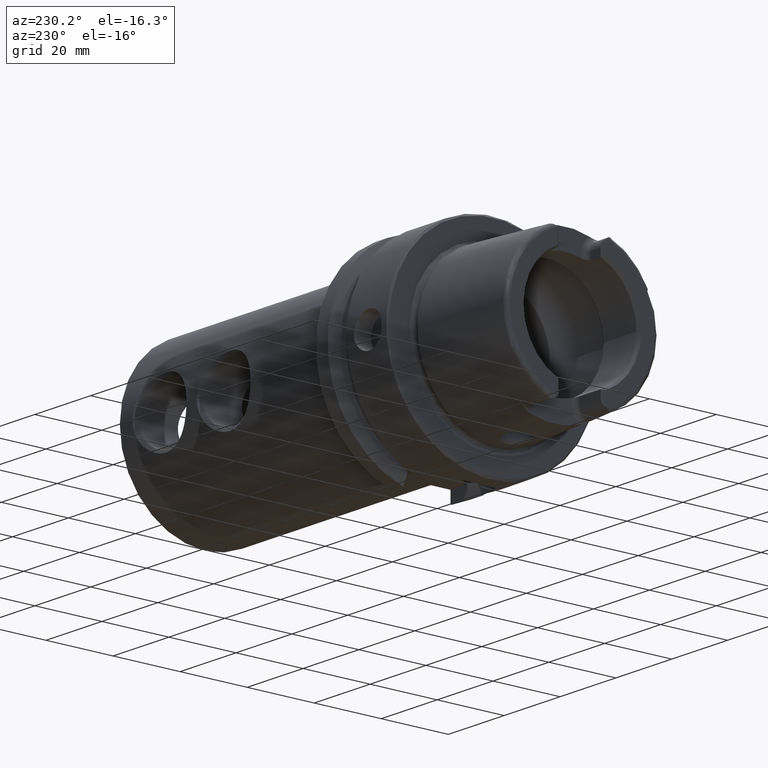
[diagram: clean part render]
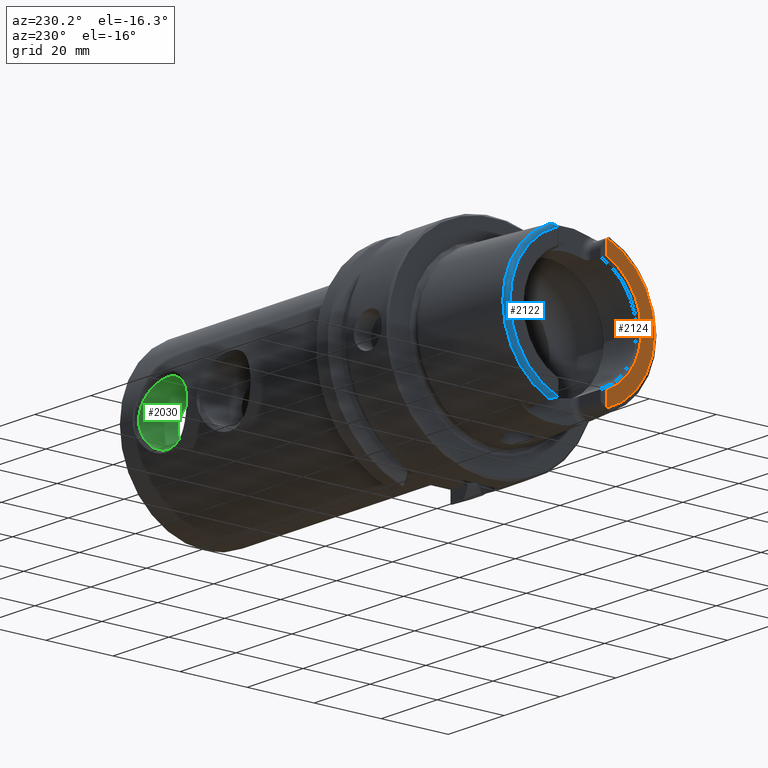
[diagram: same view with three faces highlighted in distinct colors, each labeled with its STEP entity id]
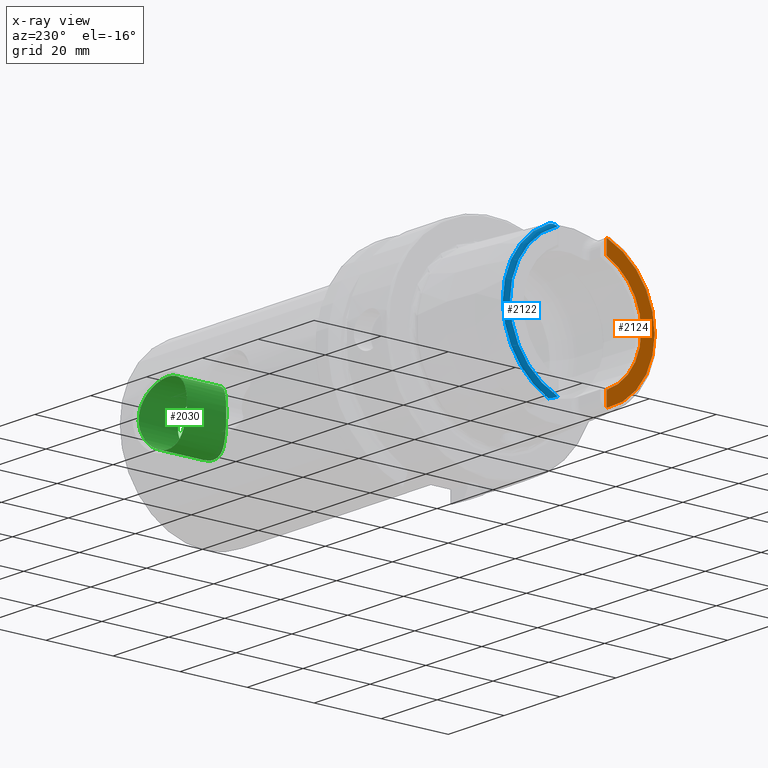
[diagram: x-ray of the same camera — body ghosted, the three highlighted faces saturated]
A machine part, auxiliary view with three faces highlighted in distinct colors.
The next image is the same camera in x-ray (body ghosted, the three faces saturated) — at least one of them is partly hidden behind the body in this view.
Their STEP definitions:

[orange] entity #2124 — the highlighted planar face has unit normal (-1, 0, 0).
#66=PLANE('',#2370);
#329=FACE_OUTER_BOUND('',#463,.T.);
#463=EDGE_LOOP('',(#1921,#1922,#1923,#1924,#1925,#1926));
#499=LINE('',#3552,#611);
#512=LINE('',#3665,#624);
#611=VECTOR('',#2494,10.);
#624=VECTOR('',#2541,10.);
#726=CIRCLE('',#2203,2.88);
#730=CIRCLE('',#2218,2.88);
#806=CIRCLE('',#2371,21.5760400159857);
#807=CIRCLE('',#2372,17.5773502691896);
#856=VERTEX_POINT('',#3549);
#857=VERTEX_POINT('',#3551);
#864=VERTEX_POINT('',#3584);
#877=VERTEX_POINT('',#3658);
#880=VERTEX_POINT('',#3663);
#883=VERTEX_POINT('',#3673);
#1078=EDGE_CURVE('',#856,#857,#499,.T.);
#1087=EDGE_CURVE('',#856,#864,#726,.T.);
#1106=EDGE_CURVE('',#880,#877,#512,.T.);
#1110=EDGE_CURVE('',#883,#877,#730,.T.);
#1330=EDGE_CURVE('',#883,#864,#806,.T.);
#1331=EDGE_CURVE('',#857,#880,#807,.T.);
#1921=ORIENTED_EDGE('',*,*,#1078,.F.);
#1922=ORIENTED_EDGE('',*,*,#1087,.T.);
#1923=ORIENTED_EDGE('',*,*,#1330,.F.);
#1924=ORIENTED_EDGE('',*,*,#1110,.T.);
#1925=ORIENTED_EDGE('',*,*,#1106,.F.);
#1926=ORIENTED_EDGE('',*,*,#1331,.F.);
#2124=ADVANCED_FACE('',(#329),#66,.T.);
#2203=AXIS2_PLACEMENT_3D('',#3597,#2506,#2507);
#2218=AXIS2_PLACEMENT_3D('',#3674,#2549,#2550);
#2370=AXIS2_PLACEMENT_3D('',#4878,#2927,#2928);
#2371=AXIS2_PLACEMENT_3D('',#4879,#2929,#2930);
#2372=AXIS2_PLACEMENT_3D('',#4880,#2931,#2932);
#2494=DIRECTION('',(0.,0.,1.));
#2506=DIRECTION('center_axis',(-1.,0.,0.));
#2507=DIRECTION('ref_axis',(0.,-1.,0.));
#2541=DIRECTION('',(0.,1.58830189502884E-16,1.));
#2549=DIRECTION('center_axis',(-1.,0.,0.));
#2550=DIRECTION('ref_axis',(0.,0.453346760926795,-0.891334232685576));
#2927=DIRECTION('center_axis',(-1.,0.,0.));
#2928=DIRECTION('ref_axis',(0.,0.,1.));
#2929=DIRECTION('center_axis',(1.,0.,0.));
#2930=DIRECTION('ref_axis',(0.,0.,-1.));
#2931=DIRECTION('center_axis',(-1.,0.,0.));
#2932=DIRECTION('ref_axis',(0.,-1.,0.));
#3549=CARTESIAN_POINT('',(-32.,-7.27,-20.1717424229271));
#3551=CARTESIAN_POINT('',(-32.,-7.27,-16.003447831195));
#3552=CARTESIAN_POINT('',(-32.,-7.27,-8.995));
#3584=CARTESIAN_POINT('',(-32.,-7.39118810947246,-20.2705658801576));
#3597=CARTESIAN_POINT('Origin',(-32.,-9.15,-17.99));
#3658=CARTESIAN_POINT('',(-32.,-7.26999999999999,20.1717424229271));
#3663=CARTESIAN_POINT('',(-32.,-7.26999999999999,16.003447831195));
#3665=CARTESIAN_POINT('',(-32.,-7.27,5.5));
#3673=CARTESIAN_POINT('',(-32.,-7.39118810947246,20.2705658801576));
#3674=CARTESIAN_POINT('Origin',(-32.,-9.15,17.99));
#4878=CARTESIAN_POINT('Origin',(-32.,21.5760400159857,0.));
#4879=CARTESIAN_POINT('Origin',(-32.,0.,0.));
#4880=CARTESIAN_POINT('Origin',(-32.,0.,0.));

[blue] entity #2122 — the highlighted toroidal blend (fillet) surface has major radius 21.576 mm and minor (blend) radius 1.2 mm.
#87=TOROIDAL_SURFACE('',#2368,21.5760400159857,1.2);
#120=B_SPLINE_CURVE_WITH_KNOTS('',3,(#3621,#3622,#3623,#3624,#3625,#3626,
#3627,#3628,#3629,#3630,#3631,#3632),.UNSPECIFIED.,.F.,.F.,(4,2,2,2,2,4),
(-0.439971245205478,-0.413787817992068,-0.386870723320619,-0.314205730694733,
-0.242063220501312,-0.191373987051965),.UNSPECIFIED.);
#125=B_SPLINE_CURVE_WITH_KNOTS('',3,(#3722,#3723,#3724,#3725,#3726,#3727,
#3728,#3729,#3730,#3731,#3732,#3733),.UNSPECIFIED.,.F.,.F.,(4,2,2,2,2,4),
(-0.196594494202377,-0.162015792380097,-0.0987584756003746,-0.0492121500493367,
-0.0201918504309682,-3.59409225206588E-5),.UNSPECIFIED.);
#327=FACE_OUTER_BOUND('',#461,.T.);
#461=EDGE_LOOP('',(#1914,#1915,#1916,#1917));
#737=CIRCLE('',#2231,22.7745368271334);
#805=CIRCLE('',#2367,21.5760400159857);
#872=VERTEX_POINT('',#3618);
#873=VERTEX_POINT('',#3620);
#892=VERTEX_POINT('',#3712);
#893=VERTEX_POINT('',#3721);
#1098=EDGE_CURVE('',#873,#872,#120,.T.);
#1121=EDGE_CURVE('',#893,#892,#125,.T.);
#1139=EDGE_CURVE('',#873,#892,#737,.T.);
#1329=EDGE_CURVE('',#872,#893,#805,.T.);
#1914=ORIENTED_EDGE('',*,*,#1121,.T.);
#1915=ORIENTED_EDGE('',*,*,#1139,.F.);
#1916=ORIENTED_EDGE('',*,*,#1098,.T.);
#1917=ORIENTED_EDGE('',*,*,#1329,.T.);
#2122=ADVANCED_FACE('',(#327),#87,.T.);
#2231=AXIS2_PLACEMENT_3D('',#3950,#2582,#2583);
#2367=AXIS2_PLACEMENT_3D('',#4875,#2921,#2922);
#2368=AXIS2_PLACEMENT_3D('',#4876,#2923,#2924);
#2582=DIRECTION('center_axis',(1.,0.,0.));
#2583=DIRECTION('ref_axis',(0.,0.,-1.));
#2921=DIRECTION('center_axis',(1.,0.,0.));
#2922=DIRECTION('ref_axis',(0.,0.,-1.));
#2923=DIRECTION('center_axis',(1.,0.,0.));
#2924=DIRECTION('ref_axis',(0.,0.,-1.));
#3618=CARTESIAN_POINT('',(-32.,7.39118810947246,-20.2705658801576));
#3620=CARTESIAN_POINT('',(-30.8600449304182,9.1175788960984,-20.8698175067219));
#3621=CARTESIAN_POINT('Ctrl Pts',(-30.8600449304182,9.11757889609839,-20.8698175067219));
#3622=CARTESIAN_POINT('Ctrl Pts',(-30.9283482575805,9.10924589065498,-20.869723693404));
#3623=CARTESIAN_POINT('Ctrl Pts',(-30.993271833442,9.08711423752726,-20.869481166787));
#3624=CARTESIAN_POINT('Ctrl Pts',(-31.1175295394099,9.02410248673809,-20.8674243938042));
#3625=CARTESIAN_POINT('Ctrl Pts',(-31.1766323882079,8.98273168347476,-20.8654949507798));
#3626=CARTESIAN_POINT('Ctrl Pts',(-31.3771588963276,8.81568608992481,-20.853140478981));
#3627=CARTESIAN_POINT('Ctrl Pts',(-31.5206715121349,8.63879728066883,-20.8319176028095));
#3628=CARTESIAN_POINT('Ctrl Pts',(-31.7691415784724,8.23645855855542,-20.7290954164696));
#3629=CARTESIAN_POINT('Ctrl Pts',(-31.8687101576321,8.02133155327414,-20.6499424381211));
#3630=CARTESIAN_POINT('Ctrl Pts',(-31.9745830679216,7.66828298917771,-20.4650680358065));
#3631=CARTESIAN_POINT('Ctrl Pts',(-32.,7.52538170482901,-20.3740583042087));
#3632=CARTESIAN_POINT('Ctrl Pts',(-32.,7.39118810947247,-20.2705658801576));
#3712=CARTESIAN_POINT('',(-30.8600449304182,9.1175788960984,20.8698175067219));
#3721=CARTESIAN_POINT('',(-32.,7.39118810947246,20.2705658801576));
#3722=CARTESIAN_POINT('Ctrl Pts',(-32.,7.39118810947247,20.2705658801576));
#3723=CARTESIAN_POINT('Ctrl Pts',(-32.,7.5108721598535,20.3628682919178));
#3724=CARTESIAN_POINT('Ctrl Pts',(-31.9797330717779,7.63776168900947,20.4454948383081));
#3725=CARTESIAN_POINT('Ctrl Pts',(-31.8791506793963,8.00524977105305,20.646558514632));
#3726=CARTESIAN_POINT('Ctrl Pts',(-31.765597681806,8.24658605272637,20.7334672105939));
#3727=CARTESIAN_POINT('Ctrl Pts',(-31.5253369252513,8.62735746584638,20.8274140198604));
#3728=CARTESIAN_POINT('Ctrl Pts',(-31.4073954734027,8.77570244905025,20.847801807847));
#3729=CARTESIAN_POINT('Ctrl Pts',(-31.2163518404642,8.95387229883953,20.8640739602076));
#3730=CARTESIAN_POINT('Ctrl Pts',(-31.1366672867121,9.0150934584885,20.867161983441));
#3731=CARTESIAN_POINT('Ctrl Pts',(-30.990207154745,9.08815496121785,20.8694917701067));
#3732=CARTESIAN_POINT('Ctrl Pts',(-30.9267310903117,9.10944318505063,20.8697259145524));
#3733=CARTESIAN_POINT('Ctrl Pts',(-30.8600449304182,9.11757889609838,20.8698175067219));
#3950=CARTESIAN_POINT('Origin',(-30.8600449304182,0.,0.));
#4875=CARTESIAN_POINT('Origin',(-32.,0.,0.));
#4876=CARTESIAN_POINT('Origin',(-30.8,0.,0.));

[green] entity #2030 — the highlighted cylindrical surface (bore or boss wall) has radius 8.6614 mm, axis along (0, -1, 0).
#115=B_SPLINE_CURVE_WITH_KNOTS('',3,(#3445,#3446,#3447,#3448,#3449,#3450,
#3451,#3452,#3453,#3454,#3455,#3456,#3457,#3458,#3459,#3460,#3461,#3462,
#3463,#3464,#3465,#3466,#3467,#3468,#3469,#3470,#3471,#3472,#3473,#3474,
#3475),.UNSPECIFIED.,.T.,.F.,(4,1,1,1,1,1,1,1,1,1,1,1,1,1,1,1,1,1,1,1,1,
1,1,1,1,1,1,1,4),(3.94966474206138,4.13774401549287,4.32582328892437,4.51390256235586,
4.70198183578735,4.89006110921885,5.07814038265034,5.45429892951333,5.57968511180099,
5.70507129408866,5.83045747637632,5.95584365866398,6.08122984095165,6.20661602323931,
6.45738838781463,6.70816075238996,6.95893311696529,7.08431929925295,7.20970548154061,
7.33509166382827,7.46047784611594,7.71125021069126,7.83663639297893,7.96202257526659,
8.21279493984191,8.46356730441724,8.65164657784873,8.83972585128023,9.21588439814322),
 .UNSPECIFIED.);
#116=B_SPLINE_CURVE_WITH_KNOTS('',3,(#3480,#3481,#3482,#3483,#3484,#3485,
#3486,#3487,#3488,#3489),.UNSPECIFIED.,.F.,.F.,(4,2,2,2,4),(0.,0.342831187342052,
0.685662374684103,1.02424067190905,1.36281896913399),.UNSPECIFIED.);
#117=B_SPLINE_CURVE_WITH_KNOTS('',3,(#3490,#3491,#3492,#3493,#3494,#3495,
#3496,#3497,#3498,#3499,#3500,#3501,#3502,#3503,#3504,#3505,#3506,#3507,
#3508,#3509,#3510,#3511,#3512,#3513,#3514,#3515),.UNSPECIFIED.,.F.,.F.,
(4,2,2,2,2,2,2,2,2,2,2,2,4),(1.36281896913399,1.70139726635893,2.03997556358388,
2.38280675092593,2.72563793826798,3.06846912561003,3.41130031295208,3.74987861017703,
4.08845690740197,4.42703520462691,4.76561350185186,5.10844468919391,5.45127587653596),
 .UNSPECIFIED.);
#194=CYLINDRICAL_SURFACE('',#2178,8.6614);
#235=FACE_OUTER_BOUND('',#358,.T.);
#358=EDGE_LOOP('',(#1395,#1396,#1397,#1398,#1399));
#494=LINE('',#3478,#606);
#606=VECTOR('',#2449,8.6614);
#843=VERTEX_POINT('',#3443);
#844=VERTEX_POINT('',#3477);
#845=VERTEX_POINT('',#3479);
#1059=EDGE_CURVE('',#843,#843,#115,.T.);
#1060=EDGE_CURVE('',#843,#844,#494,.T.);
#1061=EDGE_CURVE('',#845,#844,#116,.T.);
#1062=EDGE_CURVE('',#844,#845,#117,.T.);
#1395=ORIENTED_EDGE('',*,*,#1059,.F.);
#1396=ORIENTED_EDGE('',*,*,#1060,.T.);
#1397=ORIENTED_EDGE('',*,*,#1061,.F.);
#1398=ORIENTED_EDGE('',*,*,#1062,.F.);
#1399=ORIENTED_EDGE('',*,*,#1060,.F.);
#2030=ADVANCED_FACE('',(#235),#194,.F.);
#2178=AXIS2_PLACEMENT_3D('',#3476,#2447,#2448);
#2447=DIRECTION('center_axis',(0.,-1.,0.));
#2448=DIRECTION('ref_axis',(1.,0.,0.));
#2449=DIRECTION('',(0.,-1.,0.));
#3443=CARTESIAN_POINT('',(80.2386,24.4,3.88578058618805E-15));
#3445=CARTESIAN_POINT('Ctrl Pts',(80.2386,24.4,3.88578058618805E-15));
#3446=CARTESIAN_POINT('Ctrl Pts',(80.2386,24.4,-0.602248592090343));
#3447=CARTESIAN_POINT('Ctrl Pts',(80.369001887228,24.3535273528829,-1.85196864680222));
#3448=CARTESIAN_POINT('Ctrl Pts',(80.9813245460518,24.1435090469291,-3.68635059185607));
#3449=CARTESIAN_POINT('Ctrl Pts',(82.0038254101332,23.830646363084,-5.34940628491355));
#3450=CARTESIAN_POINT('Ctrl Pts',(83.2842171236802,23.5008695594179,-6.67863780166291));
#3451=CARTESIAN_POINT('Ctrl Pts',(84.9526618698175,23.1684419604425,-7.80293782526671));
#3452=CARTESIAN_POINT('Ctrl Pts',(87.5617855781061,22.8520537423299,-8.74058028638905));
#3453=CARTESIAN_POINT('Ctrl Pts',(90.0095746343734,22.8512152833635,-8.74342162468292));
#3454=CARTESIAN_POINT('Ctrl Pts',(92.2016472090034,23.0865114411618,-8.04589843913541));
#3455=CARTESIAN_POINT('Ctrl Pts',(93.4056715210558,23.2782432577763,-7.43624176215375));
#3456=CARTESIAN_POINT('Ctrl Pts',(94.4827466778612,23.5003912660552,-6.66127311657035));
#3457=CARTESIAN_POINT('Ctrl Pts',(95.3741891815995,23.72046236622,-5.7966484956394));
#3458=CARTESIAN_POINT('Ctrl Pts',(96.1485055669038,23.9374237736498,-4.79532216383793));
#3459=CARTESIAN_POINT('Ctrl Pts',(96.9930856374514,24.2003712115357,-3.29715432590555));
#3460=CARTESIAN_POINT('Ctrl Pts',(97.5911176800318,24.4105499351472,-1.208414584391));
#3461=CARTESIAN_POINT('Ctrl Pts',(97.5944056568202,24.4113995193403,1.20698672071404));
#3462=CARTESIAN_POINT('Ctrl Pts',(96.994212407568,24.2006571268951,3.29850594267146));
#3463=CARTESIAN_POINT('Ctrl Pts',(96.1498578589917,23.9376664856055,4.79513956448351));
#3464=CARTESIAN_POINT('Ctrl Pts',(95.3754341359199,23.7203928192649,5.7981055367573));
#3465=CARTESIAN_POINT('Ctrl Pts',(94.4834091278436,23.5004027122945,6.66180812657426));
#3466=CARTESIAN_POINT('Ctrl Pts',(93.0509877654116,23.2041524164486,7.69549124536284));
#3467=CARTESIAN_POINT('Ctrl Pts',(91.3474758071462,22.9690264997653,8.3966476032889));
#3468=CARTESIAN_POINT('Ctrl Pts',(89.5508910385527,22.8747417134128,8.67001820907516));
#3469=CARTESIAN_POINT('Ctrl Pts',(87.8104321299443,22.873175739027,8.6714772992593));
#3470=CARTESIAN_POINT('Ctrl Pts',(85.5478490633524,23.0582188660782,8.14863463541898));
#3471=CARTESIAN_POINT('Ctrl Pts',(83.4222994577233,23.4641450834878,6.83133752816393));
#3472=CARTESIAN_POINT('Ctrl Pts',(82.0036918081951,23.8301490980362,5.34764048100618));
#3473=CARTESIAN_POINT('Ctrl Pts',(80.6382968475819,24.2495057551698,3.13603862826289));
#3474=CARTESIAN_POINT('Ctrl Pts',(80.2386,24.4,1.20449718418069));
#3475=CARTESIAN_POINT('Ctrl Pts',(80.2386,24.4,2.22044604925031E-15));
#3476=CARTESIAN_POINT('Origin',(88.9,14.4,0.));
#3477=CARTESIAN_POINT('',(80.2386,12.7,-1.14024155072311E-16));
#3478=CARTESIAN_POINT('',(80.2386,14.4,-1.06071557861349E-15));
#3479=CARTESIAN_POINT('',(88.9,9.28817258883575,-8.6614));
#3480=CARTESIAN_POINT('Ctrl Pts',(88.9,9.28817258883575,-8.6614));
#3481=CARTESIAN_POINT('Ctrl Pts',(87.7572293755265,9.28817258883575,-8.6614));
#3482=CARTESIAN_POINT('Ctrl Pts',(86.5868074201431,9.52028980979604,-8.42510703939285));
#3483=CARTESIAN_POINT('Ctrl Pts',(84.4751813519529,10.2403122930747,-7.53354592798));
#3484=CARTESIAN_POINT('Ctrl Pts',(83.5284889887479,10.7111190531903,-6.87755833788624));
#3485=CARTESIAN_POINT('Ctrl Pts',(82.0317830727378,11.5350374541816,-5.38085242187608));
#3486=CARTESIAN_POINT('Ctrl Pts',(81.3697130640066,11.9523850753063,-4.43227008771077));
#3487=CARTESIAN_POINT('Ctrl Pts',(80.4722325850977,12.5372065673924,-2.30715875855383));
#3488=CARTESIAN_POINT('Ctrl Pts',(80.2386,12.7,-1.12859432408315));
#3489=CARTESIAN_POINT('Ctrl Pts',(80.2386,12.7,-1.11022302462516E-15));
#3490=CARTESIAN_POINT('Ctrl Pts',(80.2386,12.7,8.32667268468867E-16));
#3491=CARTESIAN_POINT('Ctrl Pts',(80.2386,12.7,1.12859432408315));
#3492=CARTESIAN_POINT('Ctrl Pts',(80.4722325850977,12.5372065673924,2.30715875855383));
#3493=CARTESIAN_POINT('Ctrl Pts',(81.3697130640066,11.9523850753063,4.43227008771077));
#3494=CARTESIAN_POINT('Ctrl Pts',(82.0317830727378,11.5350374541816,5.38085242187607));
#3495=CARTESIAN_POINT('Ctrl Pts',(83.5284889887479,10.7111190531903,6.87755833788624));
#3496=CARTESIAN_POINT('Ctrl Pts',(84.4751813519529,10.2403122930747,7.53354592798));
#3497=CARTESIAN_POINT('Ctrl Pts',(86.5868074201431,9.52028980979604,8.42510703939285));
#3498=CARTESIAN_POINT('Ctrl Pts',(87.7572293755265,9.28817258883575,8.6614));
#3499=CARTESIAN_POINT('Ctrl Pts',(90.0427706244735,9.28817258883575,8.6614));
#3500=CARTESIAN_POINT('Ctrl Pts',(91.2131925798569,9.52028980979604,8.42510703939285));
#3501=CARTESIAN_POINT('Ctrl Pts',(93.3248186480471,10.2403122930747,7.53354592798));
#3502=CARTESIAN_POINT('Ctrl Pts',(94.2715110112521,10.7111190531903,6.87755833788624));
#3503=CARTESIAN_POINT('Ctrl Pts',(95.7682169272623,11.5350374541816,5.38085242187608));
#3504=CARTESIAN_POINT('Ctrl Pts',(96.4302869359934,11.9523850753063,4.43227008771078));
#3505=CARTESIAN_POINT('Ctrl Pts',(97.3277674149023,12.5372065673924,2.30715875855383));
#3506=CARTESIAN_POINT('Ctrl Pts',(97.5614,12.7,1.12859432408315));
#3507=CARTESIAN_POINT('Ctrl Pts',(97.5614,12.7,-1.12859432408314));
#3508=CARTESIAN_POINT('Ctrl Pts',(97.3277674149023,12.5372065673924,-2.30715875855383));
#3509=CARTESIAN_POINT('Ctrl Pts',(96.4302869359934,11.9523850753063,-4.43227008771077));
#3510=CARTESIAN_POINT('Ctrl Pts',(95.7682169272623,11.5350374541816,-5.38085242187607));
#3511=CARTESIAN_POINT('Ctrl Pts',(94.2715110112521,10.7111190531903,-6.87755833788624));
#3512=CARTESIAN_POINT('Ctrl Pts',(93.3248186480471,10.2403122930747,-7.53354592798));
#3513=CARTESIAN_POINT('Ctrl Pts',(91.2131925798569,9.52028980979604,-8.42510703939285));
#3514=CARTESIAN_POINT('Ctrl Pts',(90.0427706244735,9.28817258883575,-8.6614));
#3515=CARTESIAN_POINT('Ctrl Pts',(88.9,9.28817258883575,-8.6614));